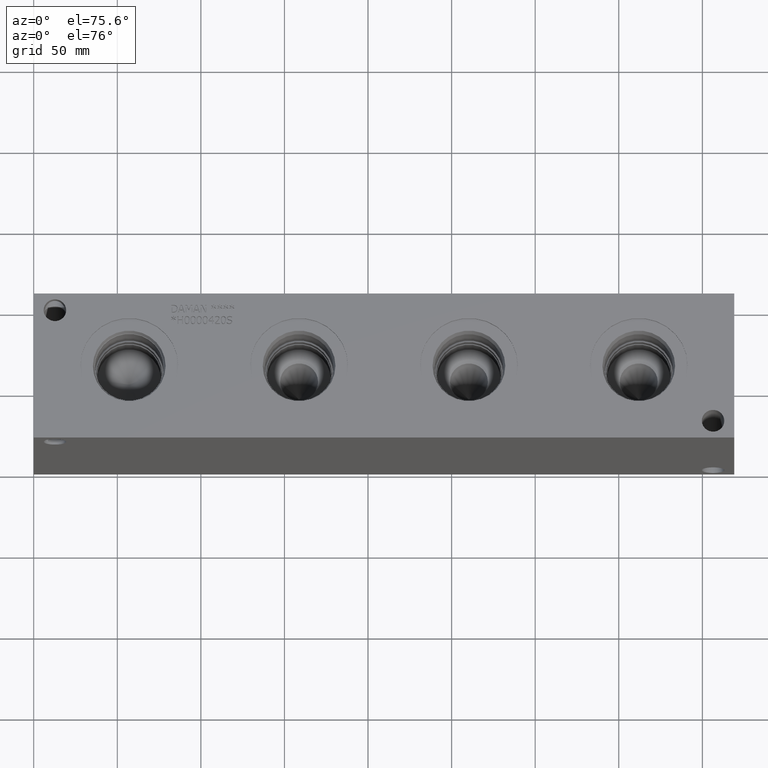
[diagram: clean part render]
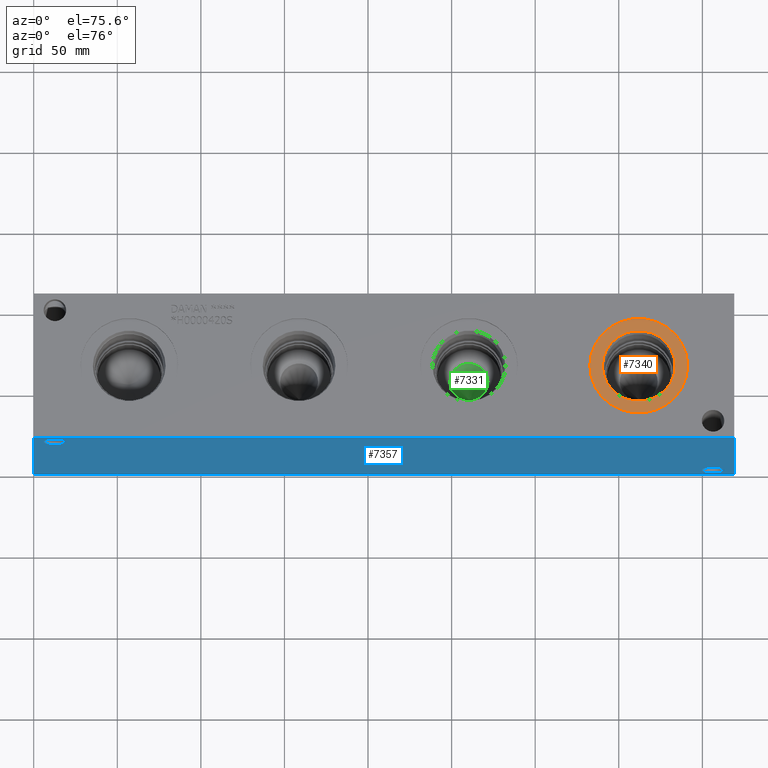
[diagram: same view with three faces highlighted in distinct colors, each labeled with its STEP entity id]
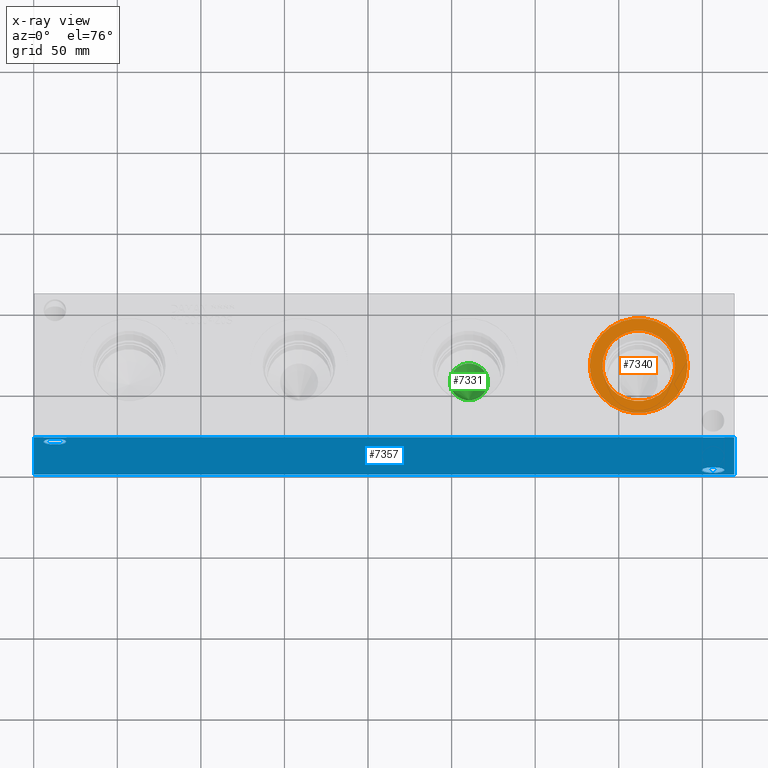
[diagram: x-ray of the same camera — body ghosted, the three highlighted faces saturated]
A machine part, auxiliary view with three faces highlighted in distinct colors.
The next image is the same camera in x-ray (body ghosted, the three faces saturated) — at least one of them is partly hidden behind the body in this view.
Their STEP definitions:

[orange] entity #7340 — the highlighted planar face has unit normal (0, 0, 1).
#180=CIRCLE('',#7744,29.2862);
#181=CIRCLE('',#7745,29.2862);
#182=CIRCLE('',#7746,21.7551);
#243=FACE_BOUND('',#1319,.T.);
#897=FACE_OUTER_BOUND('',#1318,.T.);
#1318=EDGE_LOOP('',(#6364,#6365));
#1319=EDGE_LOOP('',(#6366));
#3400=VERTEX_POINT('',#12526);
#3401=VERTEX_POINT('',#12527);
#3402=VERTEX_POINT('',#12530);
#4400=EDGE_CURVE('',#3400,#3401,#180,.T.);
#4401=EDGE_CURVE('',#3401,#3400,#181,.T.);
#4402=EDGE_CURVE('',#3402,#3402,#182,.T.);
#6364=ORIENTED_EDGE('',*,*,#4400,.T.);
#6365=ORIENTED_EDGE('',*,*,#4401,.T.);
#6366=ORIENTED_EDGE('',*,*,#4402,.F.);
#6681=PLANE('',#7743);
#7340=ADVANCED_FACE('',(#897,#243),#6681,.T.);
#7743=AXIS2_PLACEMENT_3D('',#12525,#9202,#9203);
#7744=AXIS2_PLACEMENT_3D('',#12528,#9204,#9205);
#7745=AXIS2_PLACEMENT_3D('',#12529,#9206,#9207);
#7746=AXIS2_PLACEMENT_3D('',#12531,#9208,#9209);
#9202=DIRECTION('center_axis',(0.,0.,1.));
#9203=DIRECTION('ref_axis',(1.,0.,0.));
#9204=DIRECTION('center_axis',(0.,0.,1.));
#9205=DIRECTION('ref_axis',(1.,0.,0.));
#9206=DIRECTION('center_axis',(0.,0.,1.));
#9207=DIRECTION('ref_axis',(1.,0.,0.));
#9208=DIRECTION('center_axis',(0.,0.,1.));
#9209=DIRECTION('ref_axis',(1.,0.,0.));
#12525=CARTESIAN_POINT('Origin',(361.95,44.45,88.1126));
#12526=CARTESIAN_POINT('',(391.2362,44.45,88.1126));
#12527=CARTESIAN_POINT('',(332.6638,44.45,88.1126));
#12528=CARTESIAN_POINT('Origin',(361.95,44.45,88.1126));
#12529=CARTESIAN_POINT('Origin',(361.95,44.45,88.1126));
#12530=CARTESIAN_POINT('',(340.1949,44.45,88.1126));
#12531=CARTESIAN_POINT('Origin',(361.95,44.45,88.1126));

[blue] entity #7357 — the highlighted planar face has unit normal (0, -1, 0).
#94=CIRCLE('',#7592,6.7437);
#95=CIRCLE('',#7593,6.7437);
#97=CIRCLE('',#7602,6.7437);
#98=CIRCLE('',#7603,6.7437);
#250=FACE_BOUND('',#1343,.T.);
#251=FACE_BOUND('',#1344,.T.);
#914=FACE_OUTER_BOUND('',#1342,.T.);
#1342=EDGE_LOOP('',(#6450,#6451,#6452,#6453));
#1343=EDGE_LOOP('',(#6454,#6455));
#1344=EDGE_LOOP('',(#6456,#6457));
#1598=LINE('',#11292,#2296);
#2040=LINE('',#12595,#2738);
#2045=LINE('',#12604,#2743);
#2046=LINE('',#12606,#2744);
#2296=VECTOR('',#8164,10.);
#2738=VECTOR('',#9284,10.);
#2743=VECTOR('',#9293,10.);
#2744=VECTOR('',#9296,10.);
#3027=VERTEX_POINT('',#11290);
#3028=VERTEX_POINT('',#11291);
#3305=VERTEX_POINT('',#12230);
#3306=VERTEX_POINT('',#12231);
#3310=VERTEX_POINT('',#12248);
#3311=VERTEX_POINT('',#12249);
#3422=VERTEX_POINT('',#12593);
#3424=VERTEX_POINT('',#12602);
#3848=EDGE_CURVE('',#3027,#3028,#1598,.T.);
#4257=EDGE_CURVE('',#3305,#3306,#94,.T.);
#4258=EDGE_CURVE('',#3306,#3305,#95,.T.);
#4267=EDGE_CURVE('',#3310,#3311,#97,.T.);
#4268=EDGE_CURVE('',#3311,#3310,#98,.T.);
#4432=EDGE_CURVE('',#3422,#3027,#2040,.T.);
#4437=EDGE_CURVE('',#3424,#3028,#2045,.T.);
#4438=EDGE_CURVE('',#3422,#3424,#2046,.T.);
#6450=ORIENTED_EDGE('',*,*,#4438,.T.);
#6451=ORIENTED_EDGE('',*,*,#4437,.T.);
#6452=ORIENTED_EDGE('',*,*,#3848,.F.);
#6453=ORIENTED_EDGE('',*,*,#4432,.F.);
#6454=ORIENTED_EDGE('',*,*,#4257,.T.);
#6455=ORIENTED_EDGE('',*,*,#4258,.T.);
#6456=ORIENTED_EDGE('',*,*,#4267,.T.);
#6457=ORIENTED_EDGE('',*,*,#4268,.T.);
#6687=PLANE('',#7780);
#7357=ADVANCED_FACE('',(#914,#250,#251),#6687,.T.);
#7592=AXIS2_PLACEMENT_3D('',#12232,#8851,#8852);
#7593=AXIS2_PLACEMENT_3D('',#12233,#8853,#8854);
#7602=AXIS2_PLACEMENT_3D('',#12250,#8874,#8875);
#7603=AXIS2_PLACEMENT_3D('',#12251,#8876,#8877);
#7780=AXIS2_PLACEMENT_3D('',#12605,#9294,#9295);
#8164=DIRECTION('',(1.,0.,0.));
#8851=DIRECTION('center_axis',(0.,1.,0.));
#8852=DIRECTION('ref_axis',(1.,0.,0.));
#8853=DIRECTION('center_axis',(0.,1.,0.));
#8854=DIRECTION('ref_axis',(1.,0.,0.));
#8874=DIRECTION('center_axis',(0.,1.,0.));
#8875=DIRECTION('ref_axis',(1.,0.,0.));
#8876=DIRECTION('center_axis',(0.,1.,0.));
#8877=DIRECTION('ref_axis',(1.,0.,0.));
#9284=DIRECTION('',(0.,0.,1.));
#9293=DIRECTION('',(0.,0.,1.));
#9294=DIRECTION('center_axis',(0.,-1.,0.));
#9295=DIRECTION('ref_axis',(1.,0.,0.));
#9296=DIRECTION('',(1.,0.,0.));
#11290=CARTESIAN_POINT('',(0.,0.,88.9));
#11291=CARTESIAN_POINT('',(419.1,0.,88.9));
#11292=CARTESIAN_POINT('',(0.,0.,88.9));
#12230=CARTESIAN_POINT('',(413.1437,0.,10.3124));
#12231=CARTESIAN_POINT('',(399.6563,0.,10.3124));
#12232=CARTESIAN_POINT('Origin',(406.4,0.,10.3124));
#12233=CARTESIAN_POINT('Origin',(406.4,0.,10.3124));
#12248=CARTESIAN_POINT('',(19.4437,0.,78.5876));
#12249=CARTESIAN_POINT('',(5.9563,0.,78.5876));
#12250=CARTESIAN_POINT('Origin',(12.7,0.,78.5876));
#12251=CARTESIAN_POINT('Origin',(12.7,0.,78.5876));
#12593=CARTESIAN_POINT('',(0.,0.,0.));
#12595=CARTESIAN_POINT('',(0.,0.,0.));
#12602=CARTESIAN_POINT('',(419.1,0.,0.));
#12604=CARTESIAN_POINT('',(419.1,0.,0.));
#12605=CARTESIAN_POINT('Origin',(0.,0.,0.));
#12606=CARTESIAN_POINT('',(0.,0.,0.));

[green] entity #7331 — the highlighted conical surface has half-angle 15 deg.
#31=CONICAL_SURFACE('',#7728,10.87755,0.261799387799149);
#139=CIRCLE('',#7673,11.3920023338072);
#888=FACE_OUTER_BOUND('',#1307,.T.);
#1307=EDGE_LOOP('',(#6327,#6328,#6329));
#2021=LINE('',#12496,#2719);
#2719=VECTOR('',#9167,10.87755);
#3357=VERTEX_POINT('',#12387);
#3391=VERTEX_POINT('',#12495);
#4335=EDGE_CURVE('',#3357,#3357,#139,.T.);
#4387=EDGE_CURVE('',#3357,#3391,#2021,.T.);
#6327=ORIENTED_EDGE('',*,*,#4335,.T.);
#6328=ORIENTED_EDGE('',*,*,#4387,.T.);
#6329=ORIENTED_EDGE('',*,*,#4387,.F.);
#7331=ADVANCED_FACE('',(#888),#31,.F.);
#7673=AXIS2_PLACEMENT_3D('',#12389,#9038,#9039);
#7728=AXIS2_PLACEMENT_3D('',#12494,#9165,#9166);
#9038=DIRECTION('center_axis',(0.,0.,1.));
#9039=DIRECTION('ref_axis',(1.,0.,0.));
#9165=DIRECTION('center_axis',(0.,0.,1.));
#9166=DIRECTION('ref_axis',(1.,0.,0.));
#9167=DIRECTION('',(0.258819045102521,3.16961915143176E-17,-0.965925826289068));
#12387=CARTESIAN_POINT('',(248.957997666193,44.45,49.4243329859701));
#12389=CARTESIAN_POINT('Origin',(260.35,44.45,49.4243329859701));
#12494=CARTESIAN_POINT('Origin',(260.35,44.45,47.5043707381292));
#12495=CARTESIAN_POINT('',(260.35,44.45,6.90880147625833));
#12496=CARTESIAN_POINT('',(249.47245,44.45,47.5043707381292));